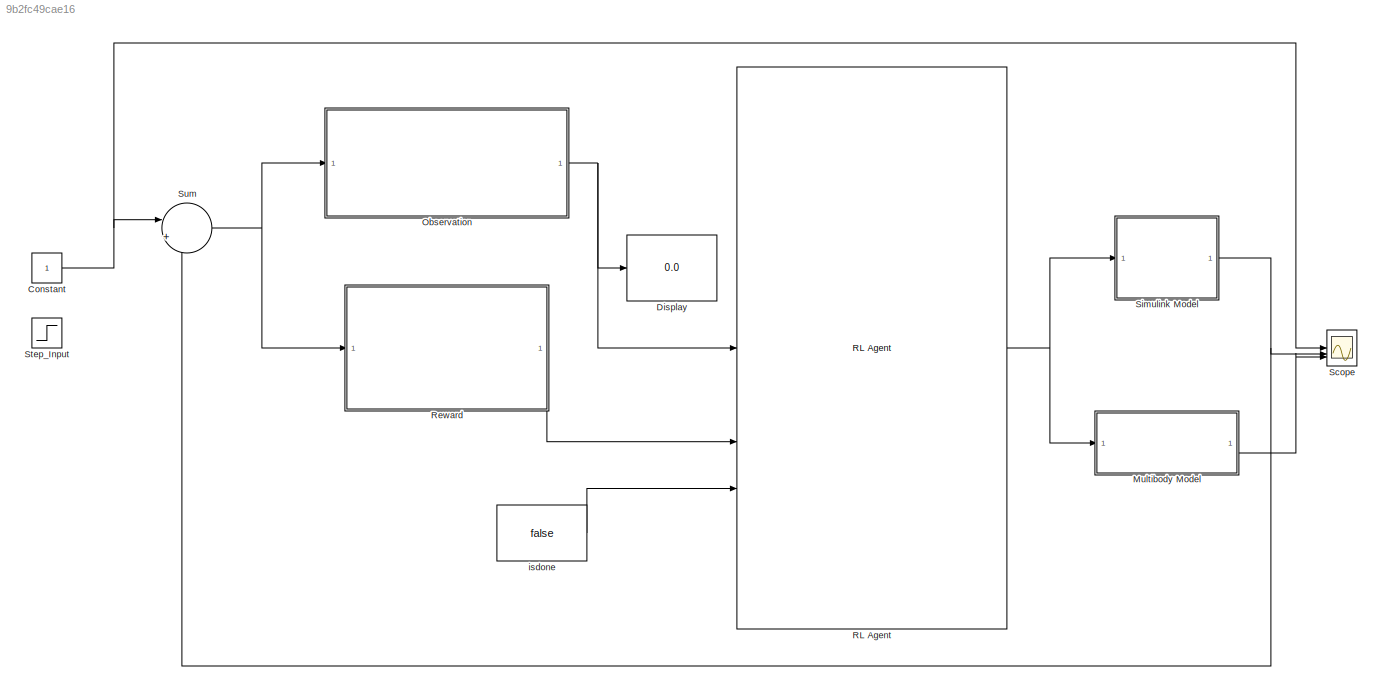
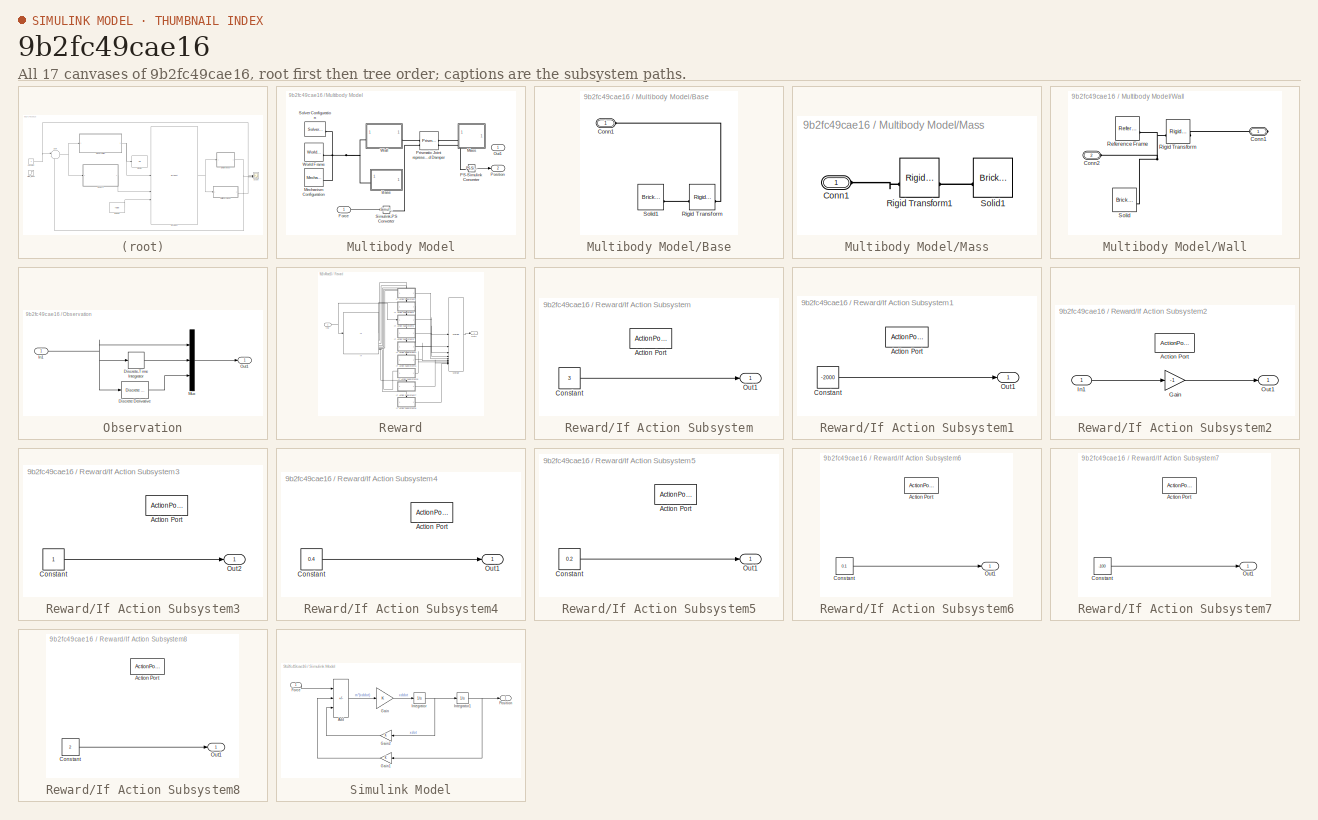
[diagram: thumbnail index - all 17 canvases of the model, root first then tree order]
MODEL slx_9b2fc49cae16
KIND model
CONFIG AbsTol = auto
CONFIG EnableMultiTasking = off
CONFIG FixedStep = auto
CONFIG MaxStep = auto
CONFIG MinStep = auto
CONFIG RelTol = 1e-3
CONFIG SampleTimeConstraint = Unconstrained
CONFIG SolverName = VariableStepAuto
CONFIG StartTime = 0.0
CONFIG StopTime = 10.0
BLOCK [Constant] Constant
BLOCK [Display] Display
  Decimation = 1
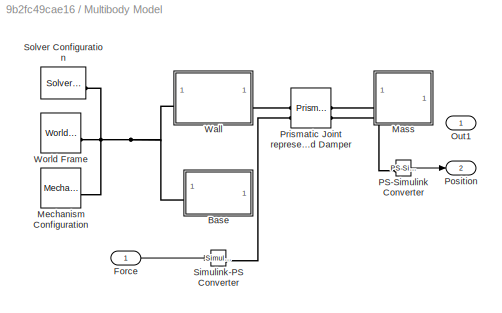
BLOCK [SubSystem] Multibody Model
BLOCK [SubSystem] Multibody Model/Base
BLOCK [PMIOPort] Multibody Model/Base/Conn1
  Side = Left
BLOCK [Reference] Multibody Model/Base/Rigid Transform  REF=sm_lib/Frames and
Transforms/Rigid
Transform
  SourceBlock = sm_lib/Frames and\nTransforms/Rigid\nTransform
  SourceType = Rigid\nTransform
BLOCK [Reference] Multibody Model/Base/Solid1  REF=sm_lib/Body Elements/Brick Solid
  SourceBlock = sm_lib/Body Elements/Brick Solid
  SourceType = Brick Solid
BLOCK [Inport] Multibody Model/Force
BLOCK [SubSystem] Multibody Model/Mass
BLOCK [PMIOPort] Multibody Model/Mass/Conn1
  Side = Left
BLOCK [Reference] Multibody Model/Mass/Rigid Transform1  REF=sm_lib/Frames and
Transforms/Rigid
Transform
  SourceBlock = sm_lib/Frames and\nTransforms/Rigid\nTransform
  SourceType = Rigid\nTransform
BLOCK [Reference] Multibody Model/Mass/Solid1  REF=sm_lib/Body Elements/Brick Solid
  SourceBlock = sm_lib/Body Elements/Brick Solid
  SourceType = Brick Solid
BLOCK [Reference] Multibody Model/Mechanism Configuration  REF=sm_lib/Utilities/Mechanism
Configuration
  SourceBlock = sm_lib/Utilities/Mechanism\nConfiguration
  SourceType = Mechanism\nConfiguration
BLOCK [Outport] Multibody Model/Out1
BLOCK [Reference] Multibody Model/PS-Simulink Converter  REF=nesl_utility/PS-Simulink
Converter
  SourceBlock = nesl_utility/PS-Simulink\nConverter
  SourceType = PS-Simulink\nConverter
BLOCK [Outport] Multibody Model/Position
  Port = 2
  VectorParamsAs1DForOutWhenUnconnected = off
BLOCK [Reference] Multibody Model/Prismatic Joint representing Spring and Damper  REF=sm_lib/Joints/Prismatic
Joint
  SourceBlock = sm_lib/Joints/Prismatic\nJoint
  SourceType = Prismatic\nJoint
BLOCK [Reference] Multibody Model/Simulink-PS Converter  REF=nesl_utility/Simulink-PS
Converter
  SourceBlock = nesl_utility/Simulink-PS\nConverter
  SourceType = Simulink-PS\nConverter
BLOCK [Reference] Multibody Model/Solver Configuration  REF=nesl_utility/Solver
Configuration
  SourceBlock = nesl_utility/Solver\nConfiguration
  SourceType = Solver\nConfiguration
BLOCK [SubSystem] Multibody Model/Wall
BLOCK [PMIOPort] Multibody Model/Wall/Conn1
  Side = Right
BLOCK [PMIOPort] Multibody Model/Wall/Conn2
  Port = 2
  Side = Left
BLOCK [Reference] Multibody Model/Wall/Reference Frame  REF=sm_lib/Frames and
Transforms/Reference
Frame
  SourceBlock = sm_lib/Frames and\nTransforms/Reference\nFrame
  SourceType = Reference\nFrame
BLOCK [Reference] Multibody Model/Wall/Rigid Transform  REF=sm_lib/Frames and
Transforms/Rigid
Transform
  SourceBlock = sm_lib/Frames and\nTransforms/Rigid\nTransform
  SourceType = Rigid\nTransform
BLOCK [Reference] Multibody Model/Wall/Solid  REF=sm_lib/Body Elements/Brick Solid
  SourceBlock = sm_lib/Body Elements/Brick Solid
  SourceType = Brick Solid
BLOCK [Reference] Multibody Model/World Frame  REF=sm_lib/Frames and
Transforms/World Frame
  SourceBlock = sm_lib/Frames and\nTransforms/World Frame
  SourceType = World Frame
BLOCK [SubSystem] Observation
BLOCK [Reference] Observation/Discrete Derivative  REF=simulink/Discrete/Discrete Derivative
  SourceBlock = simulink/Discrete/Discrete Derivative
  SourceType = Discrete Derivative
BLOCK [DiscreteIntegrator] Observation/Discrete-Time Integrator
  ICPrevOutput = DiscIntNeverNeededParam
  ICPrevScaledInput = DiscIntNeverNeededParam
  InitialConditionSetting = Auto
  SampleTime = -1
BLOCK [Inport] Observation/In1
BLOCK [Mux] Observation/Mux
  DisplayOption = bar
  Inputs = 3
BLOCK [Outport] Observation/Out1
BLOCK [Reference] RL Agent  REF=rllib/RL Agent
  SourceBlock = rllib/RL Agent
  SourceType = RL Agent
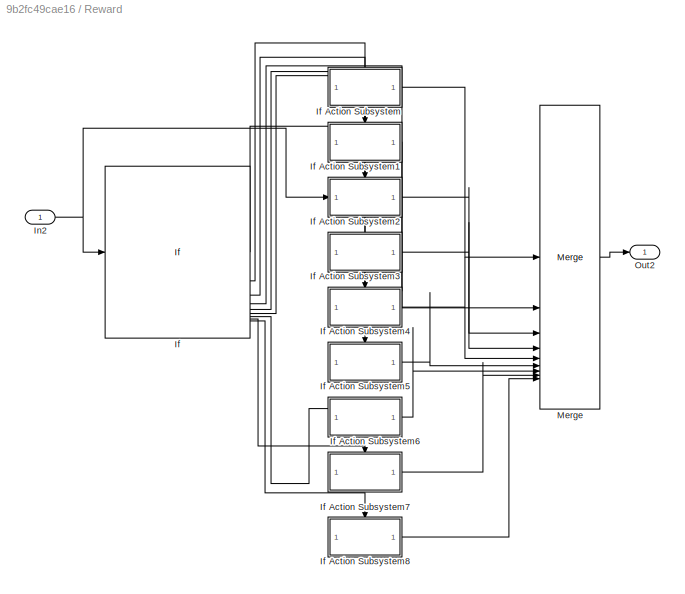
BLOCK [SubSystem] Reward
BLOCK [If] Reward/If
  ElseIfExpressions = u1 < 0, u1 > 0.1 & u1 <= 1, u1 > 0.005 & u1 <= 0.01,  u1 > 0.01 & u1 <= 0.05, u1 > 0.05 & u1 <= 0.08, u1 > 0.08 & u1 <= 0.1, u1 > 1, u1 > 0 & u1 <= 0.005
  IfExpression = u1 == 0
  ShowElse = off
BLOCK [SubSystem] Reward/If Action Subsystem
  TreatAsAtomicUnit = on
BLOCK [ActionPort] Reward/If Action Subsystem/Action Port
  ActionPortLabel = if(u1 == 0)
BLOCK [Constant] Reward/If Action Subsystem/Constant
  Value = 3
BLOCK [Outport] Reward/If Action Subsystem/Out1
BLOCK [SubSystem] Reward/If Action Subsystem1
  TreatAsAtomicUnit = on
BLOCK [ActionPort] Reward/If Action Subsystem1/Action Port
  ActionPortLabel = elseif(u1 < 0)
BLOCK [Constant] Reward/If Action Subsystem1/Constant
  Value = -2000
BLOCK [Outport] Reward/If Action Subsystem1/Out1
BLOCK [SubSystem] Reward/If Action Subsystem2
  TreatAsAtomicUnit = on
BLOCK [ActionPort] Reward/If Action Subsystem2/Action Port
  ActionPortLabel = elseif( u1 > 0.1 & u1 <= 1)
BLOCK [Gain] Reward/If Action Subsystem2/Gain
  Gain = -1
BLOCK [Inport] Reward/If Action Subsystem2/In1
BLOCK [Outport] Reward/If Action Subsystem2/Out1
BLOCK [SubSystem] Reward/If Action Subsystem3
  TreatAsAtomicUnit = on
BLOCK [ActionPort] Reward/If Action Subsystem3/Action Port
  ActionPortLabel = elseif( u1 > 0.005 & u1 <= 0.01)
BLOCK [Constant] Reward/If Action Subsystem3/Constant
BLOCK [Outport] Reward/If Action Subsystem3/Out2
BLOCK [SubSystem] Reward/If Action Subsystem4
  TreatAsAtomicUnit = on
BLOCK [ActionPort] Reward/If Action Subsystem4/Action Port
  ActionPortLabel = elseif(  u1 > 0.01 & u1 <= 0.05)
BLOCK [Constant] Reward/If Action Subsystem4/Constant
  Value = 0.4
BLOCK [Outport] Reward/If Action Subsystem4/Out1
BLOCK [SubSystem] Reward/If Action Subsystem5
  TreatAsAtomicUnit = on
BLOCK [ActionPort] Reward/If Action Subsystem5/Action Port
  ActionPortLabel = elseif( u1 > 0.05 & u1 <= 0.08)
BLOCK [Constant] Reward/If Action Subsystem5/Constant
  Value = 0.2
BLOCK [Outport] Reward/If Action Subsystem5/Out1
BLOCK [SubSystem] Reward/If Action Subsystem6
  TreatAsAtomicUnit = on
BLOCK [ActionPort] Reward/If Action Subsystem6/Action Port
  ActionPortLabel = elseif( u1 > 0.08 & u1 <= 0.1)
BLOCK [Constant] Reward/If Action Subsystem6/Constant
  Value = 0.1
BLOCK [Outport] Reward/If Action Subsystem6/Out1
BLOCK [SubSystem] Reward/If Action Subsystem7
  TreatAsAtomicUnit = on
BLOCK [ActionPort] Reward/If Action Subsystem7/Action Port
  ActionPortLabel = elseif( u1 > 1)
BLOCK [Constant] Reward/If Action Subsystem7/Constant
  Value = -100
BLOCK [Outport] Reward/If Action Subsystem7/Out1
BLOCK [SubSystem] Reward/If Action Subsystem8
  TreatAsAtomicUnit = on
BLOCK [ActionPort] Reward/If Action Subsystem8/Action Port
  ActionPortLabel = elseif( u1 > 0 & u1 <= 0.005)
BLOCK [Constant] Reward/If Action Subsystem8/Constant
  Value = 2
BLOCK [Outport] Reward/If Action Subsystem8/Out1
BLOCK [Inport] Reward/In2
BLOCK [Merge] Reward/Merge
  Inputs = 9
BLOCK [Outport] Reward/Out2
BLOCK [Scope] Scope
  Floating = off
  NumInputPorts = 3
  ScopeSpecificationString = Simulink.scopes.TimeScopeBlockCfg('CurrentConfiguration', extmgr.ConfigurationSet(extmgr.Configuration('Core','General UI',true),extmgr.Configuration('Core','Source UI',true),extmgr.Configuration('Sources','WiredSimulink',true),extmgr.Configuration('Visuals','Time Domain',true,'SerializedDisplays',{struct('MinYLimReal','-0.125','MaxYLimReal','1.125','YLabelReal','','MinYLimMag','0.00000','MaxYLimM...<+1700ch>
BLOCK [SubSystem] Simulink Model
BLOCK [Sum] Simulink Model/Add
  IconShape = rectangular
  Inputs = +--
BLOCK [Inport] Simulink Model/Force
BLOCK [Gain] Simulink Model/Gain
BLOCK [Gain] Simulink Model/Gain1
BLOCK [Gain] Simulink Model/Gain2
BLOCK [Integrator] Simulink Model/Integrator
BLOCK [Integrator] Simulink Model/Integrator1
BLOCK [Outport] Simulink Model/Position
  VectorParamsAs1DForOutWhenUnconnected = off
BLOCK [Step] Step_Input
  SampleTime = 0
BLOCK [Sum] Sum
  Inputs = |+-
BLOCK [Constant] isdone
  Value = false
NET Constant:1 -> Scope:1, Sum:1
LINE Multibody Model/Force:1 -> Multibody Model/Simulink-PS Converter:1
LINE Multibody Model/PS-Simulink Converter:1 -> Multibody Model/Position:1
LINE Multibody Model:2 -> Scope:3
LINE Observation/Discrete Derivative:1 -> Observation/Mux:3
LINE Observation/Discrete-Time Integrator:1 -> Observation/Mux:2
NET Observation/In1:1 -> Observation/Discrete Derivative:1, Observation/Discrete-Time Integrator:1, Observation/Mux:1
LINE Observation/Mux:1 -> Observation/Out1:1
NET Observation:1 -> Display:1, RL Agent:1
NET RL Agent:1 -> Multibody Model:1, Simulink Model:1
LINE Reward/If Action Subsystem/Constant:1 -> Reward/If Action Subsystem/Out1:1
LINE Reward/If Action Subsystem1/Constant:1 -> Reward/If Action Subsystem1/Out1:1
LINE Reward/If Action Subsystem1:1 -> Reward/Merge:2
LINE Reward/If Action Subsystem2/Gain:1 -> Reward/If Action Subsystem2/Out1:1
LINE Reward/If Action Subsystem2/In1:1 -> Reward/If Action Subsystem2/Gain:1
LINE Reward/If Action Subsystem2:1 -> Reward/Merge:3
LINE Reward/If Action Subsystem3/Constant:1 -> Reward/If Action Subsystem3/Out2:1
LINE Reward/If Action Subsystem3:1 -> Reward/Merge:4
LINE Reward/If Action Subsystem4/Constant:1 -> Reward/If Action Subsystem4/Out1:1
LINE Reward/If Action Subsystem4:1 -> Reward/Merge:5
LINE Reward/If Action Subsystem5/Constant:1 -> Reward/If Action Subsystem5/Out1:1
LINE Reward/If Action Subsystem5:1 -> Reward/Merge:6
LINE Reward/If Action Subsystem6/Constant:1 -> Reward/If Action Subsystem6/Out1:1
LINE Reward/If Action Subsystem6:1 -> Reward/Merge:7
LINE Reward/If Action Subsystem7/Constant:1 -> Reward/If Action Subsystem7/Out1:1
LINE Reward/If Action Subsystem7:1 -> Reward/Merge:8
LINE Reward/If Action Subsystem8/Constant:1 -> Reward/If Action Subsystem8/Out1:1
LINE Reward/If Action Subsystem8:1 -> Reward/Merge:9
LINE Reward/If Action Subsystem:1 -> Reward/Merge:1
LINE Reward/If:1 -> Reward/If Action Subsystem:ifaction
LINE Reward/If:2 -> Reward/If Action Subsystem1:ifaction
LINE Reward/If:3 -> Reward/If Action Subsystem2:ifaction
LINE Reward/If:4 -> Reward/If Action Subsystem3:ifaction
LINE Reward/If:5 -> Reward/If Action Subsystem4:ifaction
LINE Reward/If:6 -> Reward/If Action Subsystem5:ifaction
LINE Reward/If:7 -> Reward/If Action Subsystem6:ifaction
LINE Reward/If:8 -> Reward/If Action Subsystem7:ifaction
LINE Reward/If:9 -> Reward/If Action Subsystem8:ifaction
NET Reward/In2:1 -> Reward/If Action Subsystem2:1, Reward/If:1
LINE Reward/Merge:1 -> Reward/Out2:1
LINE Reward:1 -> RL Agent:2
LINE Simulink Model/Add:1 -> Simulink Model/Gain:1
LINE Simulink Model/Force:1 -> Simulink Model/Add:1
LINE Simulink Model/Gain1:1 -> Simulink Model/Add:2
LINE Simulink Model/Gain2:1 -> Simulink Model/Add:3
LINE Simulink Model/Gain:1 -> Simulink Model/Integrator:1
NET Simulink Model/Integrator1:1 -> Simulink Model/Gain1:1, Simulink Model/Position:1
NET Simulink Model/Integrator:1 -> Simulink Model/Gain2:1, Simulink Model/Integrator1:1
NET Simulink Model:1 -> Scope:2, Sum:2
NET Sum:1 -> Observation:1, Reward:1
LINE isdone:1 -> RL Agent:3
PLINE Multibody Model/Base/Conn1:RConn1 -- Multibody Model/Base/Rigid Transform:LConn1
PLINE Multibody Model/Base/Rigid Transform:RConn1 -- Multibody Model/Base/Solid1:RConn1
PNET net1: Multibody Model/Base:LConn1 -- Multibody Model/Mechanism Configuration:RConn1 -- Multibody Model/Solver Configuration:RConn1 -- Multibody Model/Wall:LConn1 -- Multibody Model/World Frame:RConn1
PLINE Multibody Model/Mass/Conn1:RConn1 -- Multibody Model/Mass/Rigid Transform1:LConn1
PLINE Multibody Model/Mass/Rigid Transform1:RConn1 -- Multibody Model/Mass/Solid1:RConn1
PLINE Multibody Model/Mass:LConn1 -- Multibody Model/Prismatic Joint representing Spring and Damper:RConn1
PLINE Multibody Model/PS-Simulink Converter:LConn1 -- Multibody Model/Prismatic Joint representing Spring and Damper:RConn2
PLINE Multibody Model/Prismatic Joint representing Spring and Damper:LConn1 -- Multibody Model/Wall:RConn1
PLINE Multibody Model/Prismatic Joint representing Spring and Damper:LConn2 -- Multibody Model/Simulink-PS Converter:RConn1
PLINE Multibody Model/Wall/Conn1:RConn1 -- Multibody Model/Wall/Rigid Transform:RConn1
PNET net2: Multibody Model/Wall/Conn2:RConn1 -- Multibody Model/Wall/Reference Frame:RConn1 -- Multibody Model/Wall/Rigid Transform:LConn1 -- Multibody Model/Wall/Solid:RConn1
note: NET lines group one-source signal fan-out (src -> all destinations, sorted); 1:1 wires keep LINE; PNET lines group multi-terminal physical nets as a canonical sorted terminal list (undirected conserving connections); 2-terminal nets keep the pairwise PLINE form
